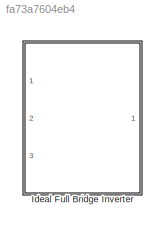
MODEL slx_fa73a7604eb4
KIND model
CONFIG AbsTol = auto
CONFIG FixedStep = 1e-6
CONFIG MaxStep = auto
CONFIG MinStep = auto
CONFIG RelTol = 1e-3
CONFIG SampleTimeConstraint = Unconstrained
CONFIG Solver = ode4
CONFIG SolverMode = Auto
CONFIG SolverName = ode4
CONFIG StartTime = 0.0
CONFIG StopTime = 0.1
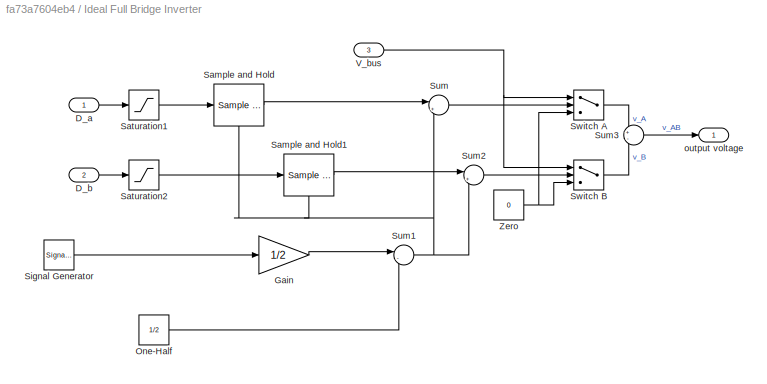
BLOCK [SubSystem] Ideal Full Bridge Inverter 
  Ports = [3, 1]
  RequestExecContextInheritance = off
  Variant = off
BLOCK [Inport] Ideal Full Bridge Inverter /D_a
  IconDisplay = Port number
BLOCK [Inport] Ideal Full Bridge Inverter /D_b
  IconDisplay = Port number
  Port = 2
BLOCK [Gain] Ideal Full Bridge Inverter /Gain
  Gain = 1/2
BLOCK [Constant] Ideal Full Bridge Inverter /One-Half
  Value = 1/2
BLOCK [Reference] Ideal Full Bridge Inverter /Sample and Hold  REF=dspsigops/Sample
and Hold
  Ports = [1, 1, 0, 1]
  SourceBlock = dspsigops/Sample\nand Hold
  SourceType = Sample and Hold
BLOCK [Reference] Ideal Full Bridge Inverter /Sample and Hold1  REF=dspsigops/Sample
and Hold
  Ports = [1, 1, 0, 1]
  SourceBlock = dspsigops/Sample\nand Hold
  SourceType = Sample and Hold
BLOCK [Saturate] Ideal Full Bridge Inverter /Saturation1
  InputPortMap = u0
  LowerLimit = 0
  Ports = [1, 1]
  UpperLimit = 1
BLOCK [Saturate] Ideal Full Bridge Inverter /Saturation2
  InputPortMap = u0
  LowerLimit = 0
  Ports = [1, 1]
  UpperLimit = 1
BLOCK [SignalGenerator] Ideal Full Bridge Inverter /Signal Generator
  Frequency = f_sw
  Ports = [0, 1]
  WaveForm = sawtooth
BLOCK [Sum] Ideal Full Bridge Inverter /Sum
  IconShape = round
  InputSameDT = off
  Inputs = |+-
  OutDataTypeStr = Inherit: Inherit via internal rule
  Ports = [2, 1]
BLOCK [Sum] Ideal Full Bridge Inverter /Sum1
  IconShape = round
  InputSameDT = off
  Inputs = |-+
  OutDataTypeStr = Inherit: Inherit via internal rule
  Ports = [2, 1]
BLOCK [Sum] Ideal Full Bridge Inverter /Sum2
  IconShape = round
  InputSameDT = off
  Inputs = |+-
  OutDataTypeStr = Inherit: Inherit via internal rule
  Ports = [2, 1]
BLOCK [Sum] Ideal Full Bridge Inverter /Sum3
  IconShape = round
  InputSameDT = off
  Inputs = +-
  OutDataTypeStr = Inherit: Inherit via internal rule
  Ports = [2, 1]
BLOCK [Switch] Ideal Full Bridge Inverter /Switch A
  InputSameDT = off
BLOCK [Switch] Ideal Full Bridge Inverter /Switch B
  InputSameDT = off
BLOCK [Inport] Ideal Full Bridge Inverter /V_bus
  IconDisplay = Port number
  Port = 3
BLOCK [Constant] Ideal Full Bridge Inverter /Zero
  Value = 0
BLOCK [Outport] Ideal Full Bridge Inverter /output voltage
  IconDisplay = Port number
LINE Ideal Full Bridge Inverter /D_a:1 -> Ideal Full Bridge Inverter /Saturation1:1
LINE Ideal Full Bridge Inverter /D_b:1 -> Ideal Full Bridge Inverter /Saturation2:1
LINE Ideal Full Bridge Inverter /Gain:1 -> Ideal Full Bridge Inverter /Sum1:1
LINE Ideal Full Bridge Inverter /One-Half:1 -> Ideal Full Bridge Inverter /Sum1:2
LINE Ideal Full Bridge Inverter /Sample and Hold1:1 -> Ideal Full Bridge Inverter /Sum2:1
LINE Ideal Full Bridge Inverter /Sample and Hold:1 -> Ideal Full Bridge Inverter /Sum:1
LINE Ideal Full Bridge Inverter /Saturation1:1 -> Ideal Full Bridge Inverter /Sample and Hold:1
LINE Ideal Full Bridge Inverter /Saturation2:1 -> Ideal Full Bridge Inverter /Sample and Hold1:1
LINE Ideal Full Bridge Inverter /Signal Generator:1 -> Ideal Full Bridge Inverter /Gain:1
NET Ideal Full Bridge Inverter /Sum1:1 -> Ideal Full Bridge Inverter /Sample and Hold1:trigger, Ideal Full Bridge Inverter /Sample and Hold:trigger, Ideal Full Bridge Inverter /Sum2:2, Ideal Full Bridge Inverter /Sum:2
LINE Ideal Full Bridge Inverter /Sum2:1 -> Ideal Full Bridge Inverter /Switch B:2
LINE Ideal Full Bridge Inverter /Sum3:1 -> Ideal Full Bridge Inverter /output voltage:1
LINE Ideal Full Bridge Inverter /Sum:1 -> Ideal Full Bridge Inverter /Switch A:2
LINE Ideal Full Bridge Inverter /Switch A:1 -> Ideal Full Bridge Inverter /Sum3:1
LINE Ideal Full Bridge Inverter /Switch B:1 -> Ideal Full Bridge Inverter /Sum3:2
NET Ideal Full Bridge Inverter /V_bus:1 -> Ideal Full Bridge Inverter /Switch A:1, Ideal Full Bridge Inverter /Switch B:1
NET Ideal Full Bridge Inverter /Zero:1 -> Ideal Full Bridge Inverter /Switch A:3, Ideal Full Bridge Inverter /Switch B:3
note: NET lines group one-source signal fan-out (src -> all destinations, sorted); 1:1 wires keep LINE
